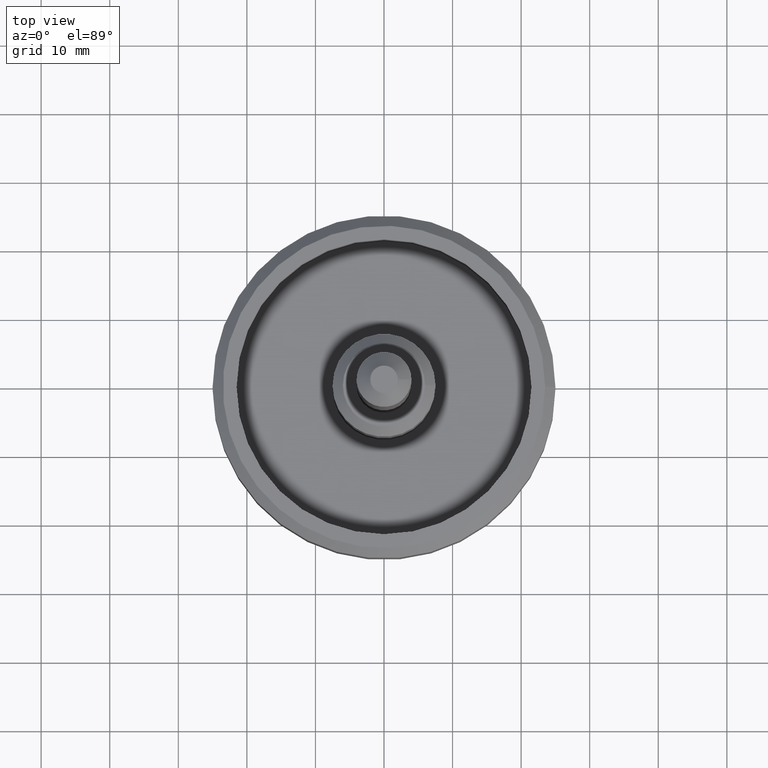
[diagram: clean part render]
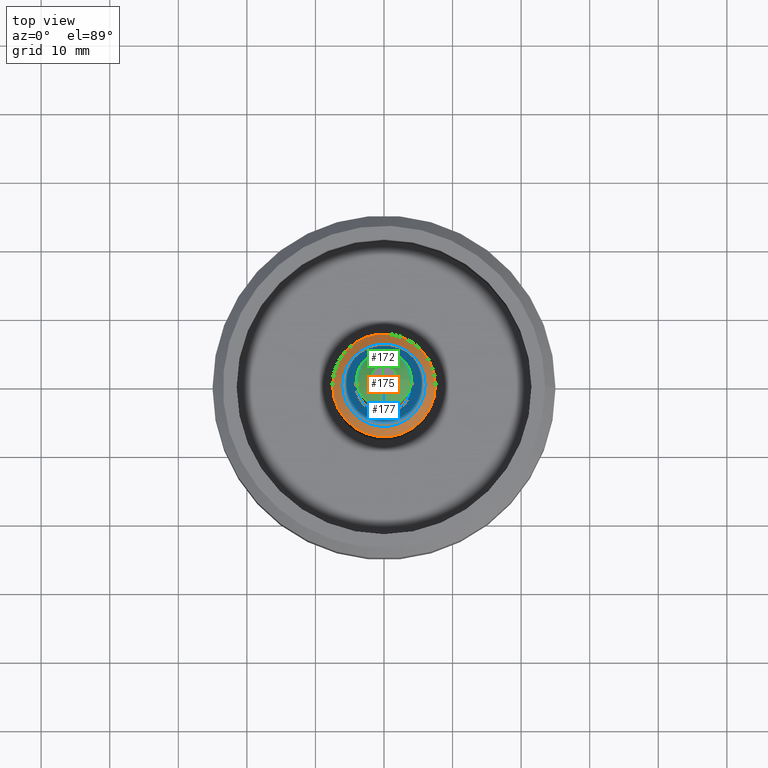
[diagram: same view with three faces highlighted in distinct colors, each labeled with its STEP entity id]
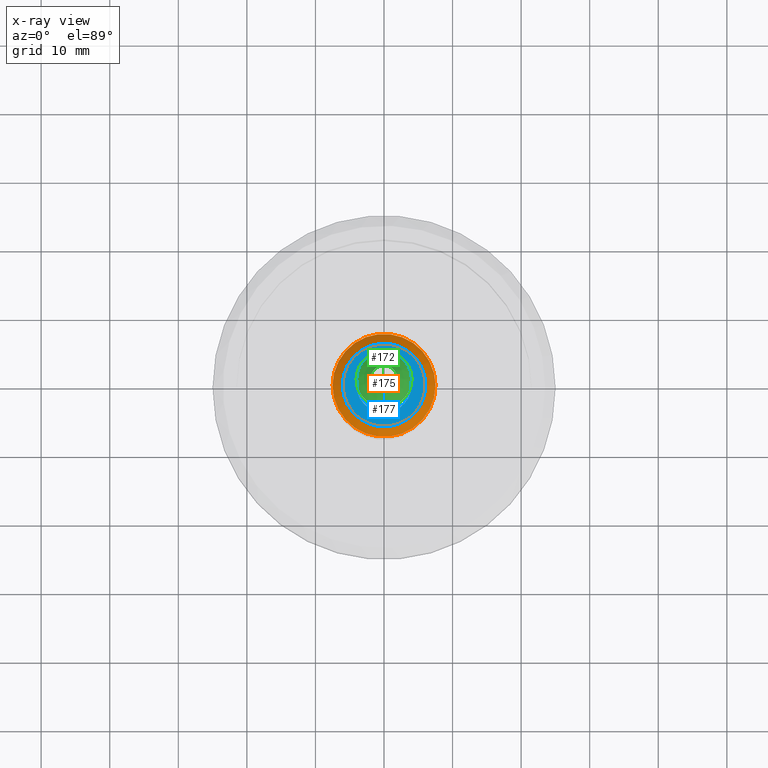
[diagram: x-ray of the same camera — body ghosted, the three highlighted faces saturated]
A machine part, top view with three faces highlighted in distinct colors.
The next image is the same camera in x-ray (body ghosted, the three faces saturated) — at least one of them is partly hidden behind the body in this view.
Their STEP definitions:

[orange] entity #175 — the highlighted conical surface has half-angle 45 deg.
#33=FACE_BOUND('',#73,.T.);
#49=FACE_OUTER_BOUND('',#72,.T.);
#72=EDGE_LOOP('',(#147));
#73=EDGE_LOOP('',(#148));
#96=CIRCLE('',#204,7.5);
#97=CIRCLE('',#205,6.);
#111=VERTEX_POINT('',#310);
#112=VERTEX_POINT('',#312);
#126=EDGE_CURVE('',#111,#111,#96,.T.);
#127=EDGE_CURVE('',#112,#112,#97,.T.);
#147=ORIENTED_EDGE('',*,*,#126,.T.);
#148=ORIENTED_EDGE('',*,*,#127,.T.);
#163=CONICAL_SURFACE('',#203,6.75,45.);
#175=ADVANCED_FACE('',(#49,#33),#163,.T.);
#203=AXIS2_PLACEMENT_3D('',#309,#255,#256);
#204=AXIS2_PLACEMENT_3D('',#311,#257,#258);
#205=AXIS2_PLACEMENT_3D('',#313,#259,#260);
#255=DIRECTION('center_axis',(0.,0.,-1.));
#256=DIRECTION('ref_axis',(-1.,0.,0.));
#257=DIRECTION('center_axis',(0.,0.,1.));
#258=DIRECTION('ref_axis',(-1.,0.,0.));
#259=DIRECTION('center_axis',(0.,0.,-1.));
#260=DIRECTION('ref_axis',(-1.,0.,0.));
#309=CARTESIAN_POINT('Origin',(0.,0.,29.25));
#310=CARTESIAN_POINT('',(7.5,9.18485099360515E-16,28.5));
#311=CARTESIAN_POINT('Origin',(0.,0.,28.5));
#312=CARTESIAN_POINT('',(6.,-7.34788079488412E-16,30.));
#313=CARTESIAN_POINT('Origin',(0.,0.,30.));

[blue] entity #177 — the highlighted planar face has unit normal (0, 0, 1).
#19=PLANE('',#207);
#35=FACE_BOUND('',#77,.T.);
#51=FACE_OUTER_BOUND('',#76,.T.);
#76=EDGE_LOOP('',(#151));
#77=EDGE_LOOP('',(#152));
#95=CIRCLE('',#201,4.);
#97=CIRCLE('',#205,6.);
#110=VERTEX_POINT('',#306);
#112=VERTEX_POINT('',#312);
#125=EDGE_CURVE('',#110,#110,#95,.T.);
#127=EDGE_CURVE('',#112,#112,#97,.T.);
#151=ORIENTED_EDGE('',*,*,#127,.F.);
#152=ORIENTED_EDGE('',*,*,#125,.T.);
#177=ADVANCED_FACE('',(#51,#35),#19,.T.);
#201=AXIS2_PLACEMENT_3D('',#307,#251,#252);
#205=AXIS2_PLACEMENT_3D('',#313,#259,#260);
#207=AXIS2_PLACEMENT_3D('',#315,#263,#264);
#251=DIRECTION('center_axis',(0.,0.,-1.));
#252=DIRECTION('ref_axis',(-1.,0.,0.));
#259=DIRECTION('center_axis',(0.,0.,-1.));
#260=DIRECTION('ref_axis',(-1.,0.,0.));
#263=DIRECTION('center_axis',(0.,0.,1.));
#264=DIRECTION('ref_axis',(1.,0.,0.));
#306=CARTESIAN_POINT('',(4.,4.89858719658941E-16,30.));
#307=CARTESIAN_POINT('Origin',(0.,0.,30.));
#312=CARTESIAN_POINT('',(6.,-7.34788079488412E-16,30.));
#313=CARTESIAN_POINT('Origin',(0.,0.,30.));
#315=CARTESIAN_POINT('Origin',(-3.23256652641189E-16,1.2335811384724E-16,
30.));

[green] entity #172 — the highlighted conical surface has half-angle 45 deg.
#31=FACE_BOUND('',#68,.T.);
#46=FACE_OUTER_BOUND('',#67,.T.);
#67=EDGE_LOOP('',(#142));
#68=EDGE_LOOP('',(#143));
#93=CIRCLE('',#198,4.);
#94=CIRCLE('',#199,2.);
#108=VERTEX_POINT('',#301);
#109=VERTEX_POINT('',#303);
#123=EDGE_CURVE('',#108,#108,#93,.T.);
#124=EDGE_CURVE('',#109,#109,#94,.T.);
#142=ORIENTED_EDGE('',*,*,#123,.T.);
#143=ORIENTED_EDGE('',*,*,#124,.T.);
#162=CONICAL_SURFACE('',#197,3.,45.);
#172=ADVANCED_FACE('',(#46,#31),#162,.T.);
#197=AXIS2_PLACEMENT_3D('',#300,#243,#244);
#198=AXIS2_PLACEMENT_3D('',#302,#245,#246);
#199=AXIS2_PLACEMENT_3D('',#304,#247,#248);
#243=DIRECTION('center_axis',(0.,0.,-1.));
#244=DIRECTION('ref_axis',(-1.,0.,0.));
#245=DIRECTION('center_axis',(0.,0.,1.));
#246=DIRECTION('ref_axis',(-1.,0.,0.));
#247=DIRECTION('center_axis',(0.,0.,-1.));
#248=DIRECTION('ref_axis',(-1.,0.,0.));
#300=CARTESIAN_POINT('Origin',(0.,0.,79.));
#301=CARTESIAN_POINT('',(4.,4.89858719658941E-16,78.));
#302=CARTESIAN_POINT('Origin',(0.,0.,78.));
#303=CARTESIAN_POINT('',(2.,-2.44929359829471E-16,80.));
#304=CARTESIAN_POINT('Origin',(0.,0.,80.));